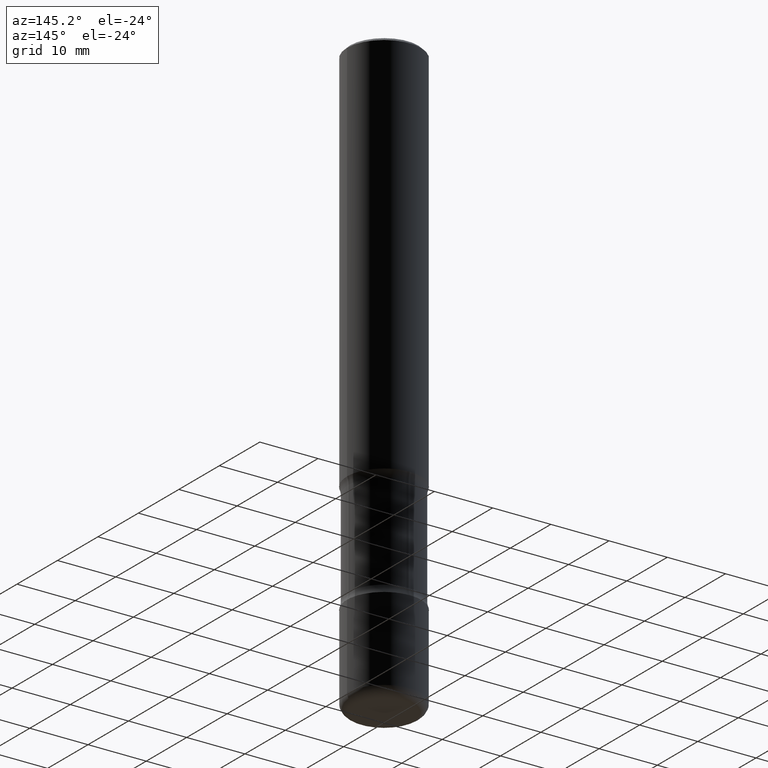
[diagram: clean part render]
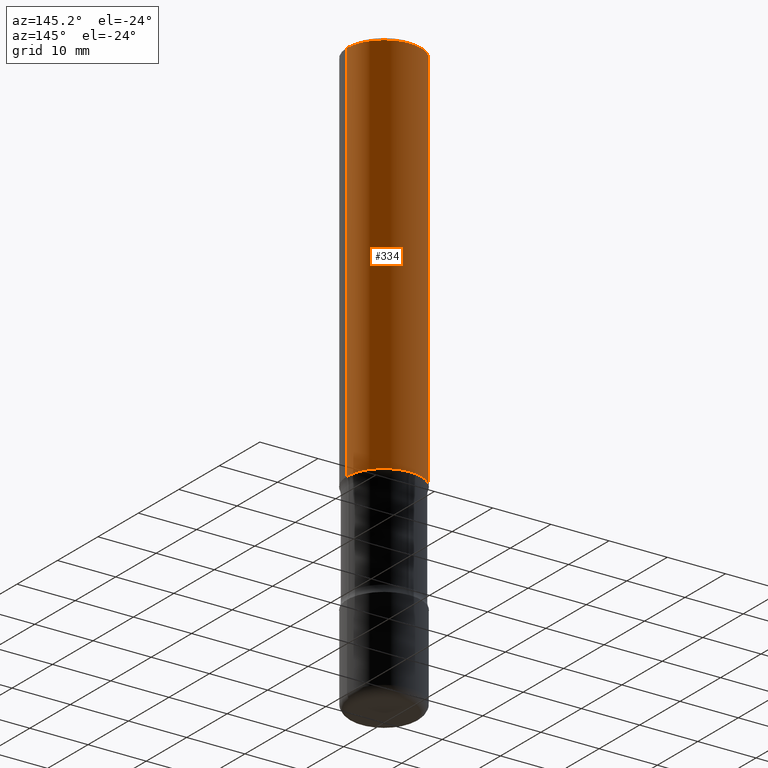
[diagram: same view with one face highlighted and labeled with its STEP entity id]
A machine part, auxiliary view. The second image highlights one B-rep face of the part: STEP entity #334.
In plain terms, the highlighted cylindrical surface (partial cylindrical patch) has radius 6.35 mm, axis along (-0, 0, 1).
Its self-contained STEP definition (entity closure, byte-faithful):
#16 = VECTOR ( 'NONE', #52, 39.37007874015748143 ) ;
#38 = EDGE_CURVE ( 'NONE', #106, #158, #494, .T. ) ;
#52 = DIRECTION ( 'NONE',  ( -2.445468806185136877E-29, 3.491481338843145188E-15, 1.000000000000000000 ) ) ;
#67 = DIRECTION ( 'NONE',  ( -2.445468806185136597E-29, 3.491481338843145583E-15, 1.000000000000000000 ) ) ;
#80 = EDGE_CURVE ( 'NONE', #225, #106, #616, .T. ) ;
#106 = VERTEX_POINT ( 'NONE', #554 ) ;
#116 = CARTESIAN_POINT ( 'NONE',  ( -0.2499999999999997224, 1.675911042644701605E-15, -0.02000000000000005593 ) ) ;
#118 = VECTOR ( 'NONE', #236, 39.37007874015748143 ) ;
#136 = CARTESIAN_POINT ( 'NONE',  ( 0.000000000000000000, 0.000000000000000000, 0.000000000000000000 ) ) ;
#139 = CARTESIAN_POINT ( 'NONE',  ( 0.2500000000000000000, -1.091087918388482487E-14, -2.625000000000000000 ) ) ;
#158 = VERTEX_POINT ( 'NONE', #116 ) ;
#169 = DIRECTION ( 'NONE',  ( 1.000000000000000000, -6.982962677686270655E-15, 0.000000000000000000 ) ) ;
#180 = LINE ( 'NONE', #611, #118 ) ;
#181 = CARTESIAN_POINT ( 'NONE',  ( -0.2499999999999998612, 1.776356839400249479E-15, -1.229733772563725745E-29 ) ) ;
#204 = CYLINDRICAL_SURFACE ( 'NONE', #476, 0.2499999999999998612 ) ;
#225 = VERTEX_POINT ( 'NONE', #139 ) ;
#236 = DIRECTION ( 'NONE',  ( -2.445468806185136877E-29, 3.491481338843145188E-15, 1.000000000000000000 ) ) ;
#249 = CIRCLE ( 'NONE', #500, 0.2499999999999997224 ) ;
#264 = CARTESIAN_POINT ( 'NONE',  ( 4.890937612370287172E-31, -6.982962677686310098E-17, -0.02000000000000005593 ) ) ;
#298 = CARTESIAN_POINT ( 'NONE',  ( 6.419355616235983567E-29, -9.165138514463256612E-15, -2.625000000000000000 ) ) ;
#323 = ORIENTED_EDGE ( 'NONE', *, *, #80, .T. ) ;
#324 = DIRECTION ( 'NONE',  ( 1.000000000000000000, -6.982962677686266711E-15, 4.876176775795935793E-29 ) ) ;
#331 = DIRECTION ( 'NONE',  ( -2.445468806185136597E-29, 3.491481338843145583E-15, 1.000000000000000000 ) ) ;
#334 = ADVANCED_FACE ( 'NONE', ( #696 ), #204, .T. ) ;
#336 = VERTEX_POINT ( 'NONE', #574 ) ;
#340 = EDGE_CURVE ( 'NONE', #336, #158, #249, .T. ) ;
#460 = EDGE_LOOP ( 'NONE', ( #323, #701, #708, #707 ) ) ;
#475 = AXIS2_PLACEMENT_3D ( 'NONE', #298, #67, #169 ) ;
#476 = AXIS2_PLACEMENT_3D ( 'NONE', #136, #638, #324 ) ;
#494 = LINE ( 'NONE', #181, #16 ) ;
#500 = AXIS2_PLACEMENT_3D ( 'NONE', #264, #331, #578 ) ;
#554 = CARTESIAN_POINT ( 'NONE',  ( -0.2499999999999999722, -2.841127231219808307E-15, -2.625000000000000000 ) ) ;
#574 = CARTESIAN_POINT ( 'NONE',  ( 0.2499999999999997224, -1.784954126219744217E-15, -0.02000000000000005593 ) ) ;
#578 = DIRECTION ( 'NONE',  ( 1.000000000000000000, -6.982962677686266711E-15, 0.000000000000000000 ) ) ;
#596 = EDGE_CURVE ( 'NONE', #225, #336, #180, .T. ) ;
#611 = CARTESIAN_POINT ( 'NONE',  ( 0.2499999999999998612, -1.745740669421565692E-15, 1.219044193948983248E-29 ) ) ;
#616 = CIRCLE ( 'NONE', #475, 0.2500000000000000000 ) ;
#638 = DIRECTION ( 'NONE',  ( -2.445468806185136597E-29, 3.491481338843145583E-15, 1.000000000000000000 ) ) ;
#696 = FACE_OUTER_BOUND ( 'NONE', #460, .T. ) ;
#701 = ORIENTED_EDGE ( 'NONE', *, *, #38, .T. ) ;
#707 = ORIENTED_EDGE ( 'NONE', *, *, #596, .F. ) ;
#708 = ORIENTED_EDGE ( 'NONE', *, *, #340, .F. ) ;